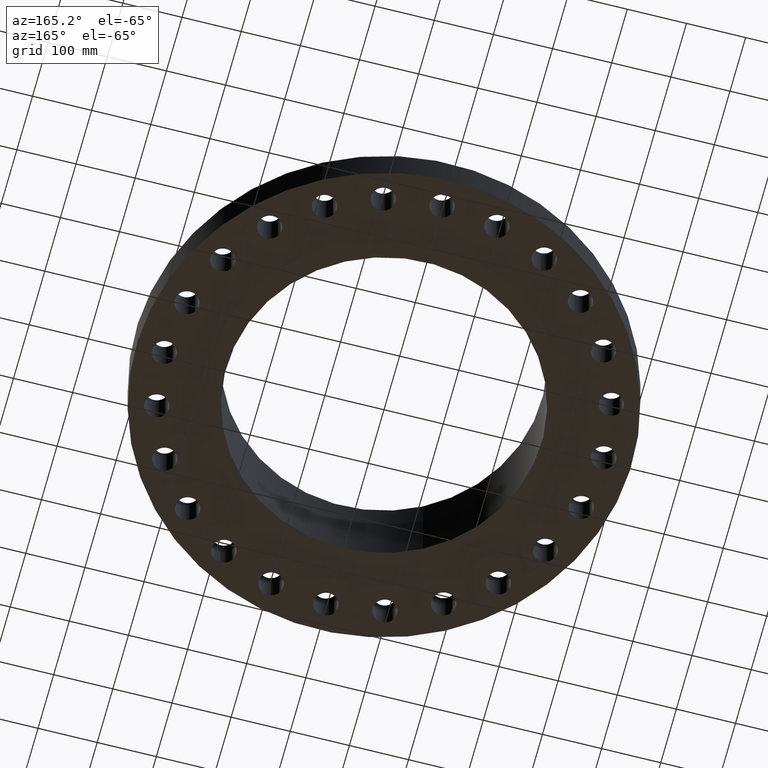
[diagram: clean part render]
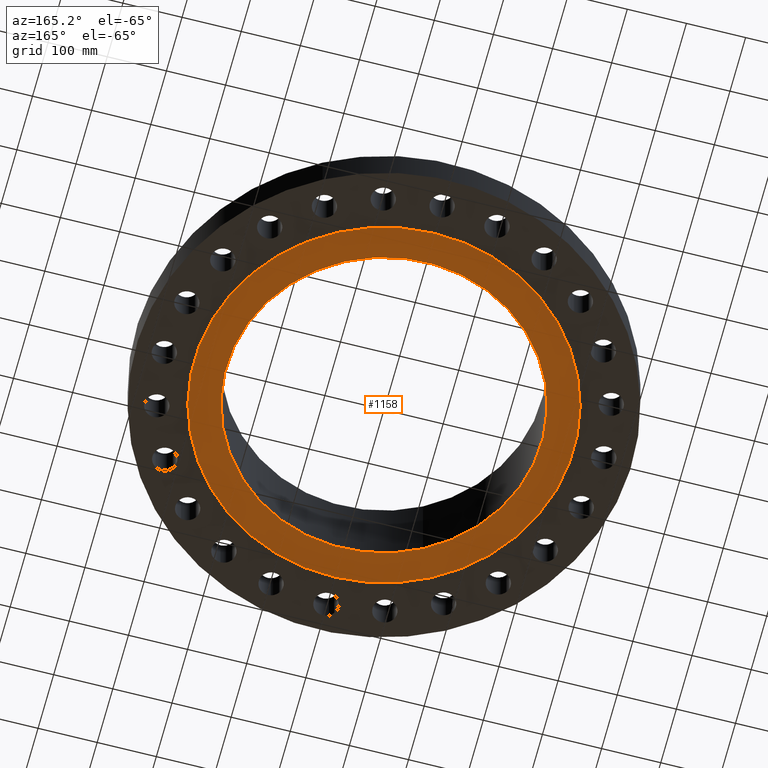
[diagram: same view with one face highlighted and labeled with its STEP entity id]
A machine part, auxiliary view. The second image highlights one B-rep face of the part: STEP entity #1158.
In plain terms, the highlighted planar face has unit normal (0, 0, -1).
Its self-contained STEP definition (entity closure, byte-faithful):
#139=AXIS2_PLACEMENT_3D('Plane Axis2P3D',#136,#137,#138) ;
#165=AXIS2_PLACEMENT_3D('Circle Axis2P3D',#163,#164,$) ;
#174=AXIS2_PLACEMENT_3D('Circle Axis2P3D',#172,#173,$) ;
#1142=AXIS2_PLACEMENT_3D('Circle Axis2P3D',#1140,#1141,$) ;
#1151=AXIS2_PLACEMENT_3D('Circle Axis2P3D',#1149,#1150,$) ;
#136=CARTESIAN_POINT('Axis2P3D Location',(0.,10.5,0.)) ;
#163=CARTESIAN_POINT('Axis2P3D Location',(3.0855458171E-011,1.24786969909E-011,0.)) ;
#167=CARTESIAN_POINT('Vertex',(6.05274742491,11.079479844,0.)) ;
#169=CARTESIAN_POINT('Vertex',(-6.05274742491,-11.0794798439,0.)) ;
#172=CARTESIAN_POINT('Axis2P3D Location',(5.59482469102E-015,2.93370227499E-011,0.)) ;
#1140=CARTESIAN_POINT('Axis2P3D Location',(-1.28132675074E-011,-3.33451551585E-013,0.)) ;
#1144=CARTESIAN_POINT('Vertex',(5.03396815535,9.21461689985,-2.32073328184E-012)) ;
#1146=CARTESIAN_POINT('Vertex',(-5.03396815535,-9.21461689985,-7.60896157979E-014)) ;
#1149=CARTESIAN_POINT('Axis2P3D Location',(1.28132675074E-011,-1.43294649987E-011,0.)) ;
#137=DIRECTION('Axis2P3D Direction',(0.,0.,-0.0393700787402)) ;
#138=DIRECTION('Axis2P3D XDirection',(0.0393700787402,0.,0.)) ;
#164=DIRECTION('Axis2P3D Direction',(0.,0.,-0.0393700787402)) ;
#173=DIRECTION('Axis2P3D Direction',(0.,0.,-0.0393700787402)) ;
#1141=DIRECTION('Axis2P3D Direction',(0.,0.,-0.0393700787402)) ;
#1150=DIRECTION('Axis2P3D Direction',(0.,0.,-0.0393700787402)) ;
#1137=ORIENTED_EDGE('',*,*,#176,.T.) ;
#1138=ORIENTED_EDGE('',*,*,#171,.T.) ;
#1155=ORIENTED_EDGE('',*,*,#1148,.F.) ;
#1156=ORIENTED_EDGE('',*,*,#1153,.F.) ;
#1157=FACE_BOUND('',#1154,.T.) ;
#1158=ADVANCED_FACE('PartBody',(#1139,#1157),#140,.T.) ;
#166=CIRCLE('generated circle',#165,12.6250000001) ;
#175=CIRCLE('generated circle',#174,12.6250000001) ;
#1143=CIRCLE('generated circle',#1142,10.5) ;
#1152=CIRCLE('generated circle',#1151,10.5) ;
#171=EDGE_CURVE('',#168,#170,#166,.T.) ;
#176=EDGE_CURVE('',#170,#168,#175,.T.) ;
#1148=EDGE_CURVE('',#1145,#1147,#1143,.T.) ;
#1153=EDGE_CURVE('',#1147,#1145,#1152,.T.) ;
#1136=EDGE_LOOP('',(#1137,#1138)) ;
#1154=EDGE_LOOP('',(#1155,#1156)) ;
#1139=FACE_OUTER_BOUND('',#1136,.T.) ;
#140=PLANE('',#139) ;
#168=VERTEX_POINT('',#167) ;
#170=VERTEX_POINT('',#169) ;
#1145=VERTEX_POINT('',#1144) ;
#1147=VERTEX_POINT('',#1146) ;